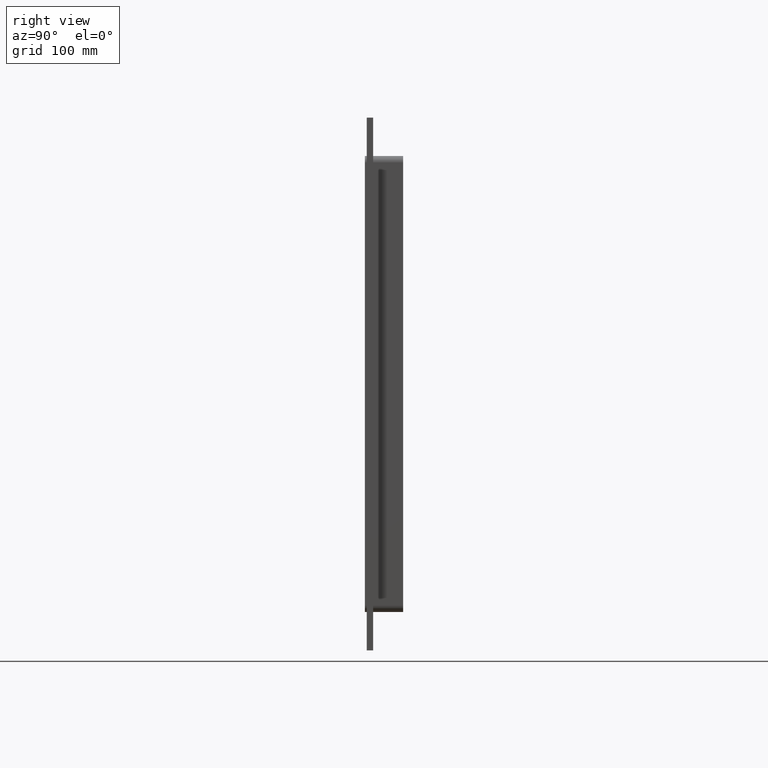
[diagram: clean part render]
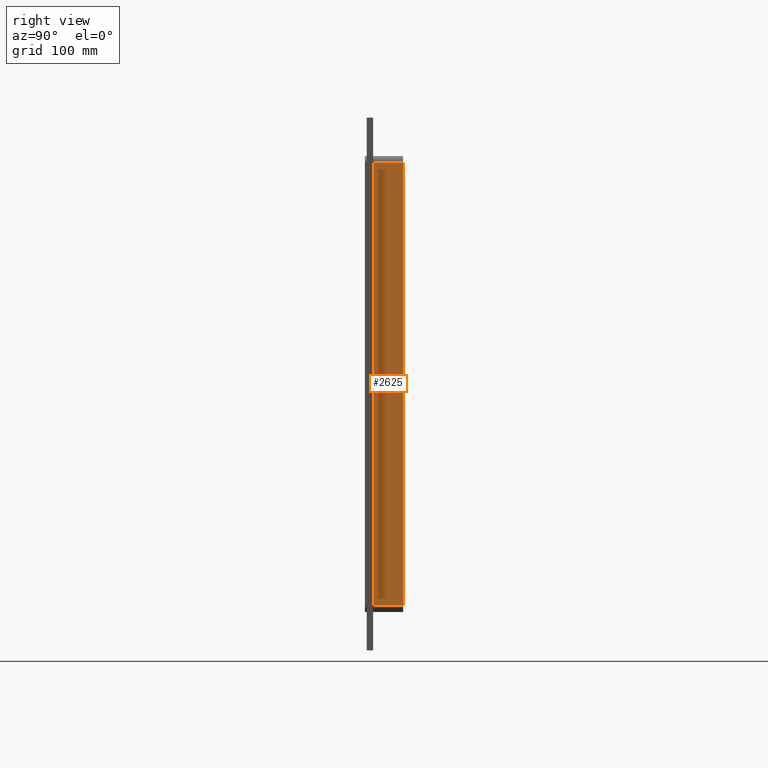
[diagram: same view with one face highlighted and labeled with its STEP entity id]
A machine part, right view. The second image highlights one B-rep face of the part: STEP entity #2625.
In plain terms, the highlighted planar face has unit normal (1, 0, 0).
Its self-contained STEP definition (entity closure, byte-faithful):
#847=CARTESIAN_POINT('',(331.25,57.0,-347.00000000000011));
#848=VERTEX_POINT('',#847);
#898=CARTESIAN_POINT('',(331.25,57.0,346.99999999999994));
#899=VERTEX_POINT('',#898);
#907=CARTESIAN_POINT('',(331.25,57.0,346.99999999999994));
#908=DIRECTION('',(0.0,0.0,-1.0));
#909=VECTOR('',#908,694.0);
#910=LINE('',#907,#909);
#911=EDGE_CURVE('',#899,#848,#910,.T.);
#2306=CARTESIAN_POINT('',(331.25,10.0,-347.00000000000011));
#2307=VERTEX_POINT('',#2306);
#2315=CARTESIAN_POINT('',(331.25,10.0,346.99999999999994));
#2316=VERTEX_POINT('',#2315);
#2317=CARTESIAN_POINT('',(331.25,10.0,346.99999999999994));
#2318=DIRECTION('',(0.0,0.0,-1.0));
#2319=VECTOR('',#2318,694.0);
#2320=LINE('',#2317,#2319);
#2321=EDGE_CURVE('',#2316,#2307,#2320,.T.);
#2576=CARTESIAN_POINT('',(331.25,10.0,346.99999999999994));
#2577=DIRECTION('',(0.0,1.0,0.0));
#2578=VECTOR('',#2577,47.0);
#2579=LINE('',#2576,#2578);
#2580=EDGE_CURVE('',#2316,#899,#2579,.T.);
#2609=CARTESIAN_POINT('',(331.25,0.0,356.99999999999994));
#2610=DIRECTION('',(1.0,0.0,0.0));
#2611=DIRECTION('',(0.0,0.0,-1.0));
#2612=AXIS2_PLACEMENT_3D('',#2609,#2610,#2611);
#2613=PLANE('',#2612);
#2614=ORIENTED_EDGE('',*,*,#2321,.T.);
#2615=CARTESIAN_POINT('',(331.25,57.0,-347.00000000000011));
#2616=DIRECTION('',(0.0,-1.0,0.0));
#2617=VECTOR('',#2616,47.0);
#2618=LINE('',#2615,#2617);
#2619=EDGE_CURVE('',#848,#2307,#2618,.T.);
#2620=ORIENTED_EDGE('',*,*,#2619,.F.);
#2621=ORIENTED_EDGE('',*,*,#911,.F.);
#2622=ORIENTED_EDGE('',*,*,#2580,.F.);
#2623=EDGE_LOOP('',(#2614,#2620,#2621,#2622));
#2624=FACE_OUTER_BOUND('',#2623,.T.);
#2625=ADVANCED_FACE('',(#2624),#2613,.T.);